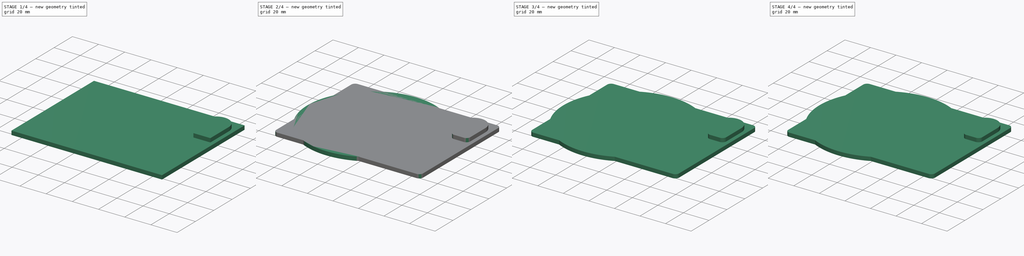
[diagram: build sequence overview — one tinted view per stage of 4, left to right]
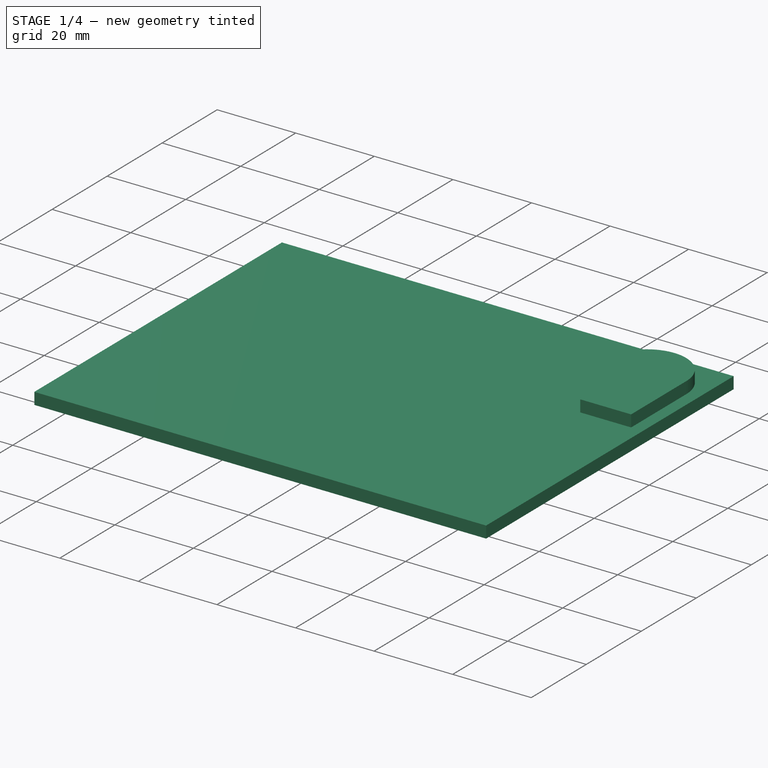
[diagram: stage 1 of 4 — iso view after this stage's code; geometry added in this stage tinted green]
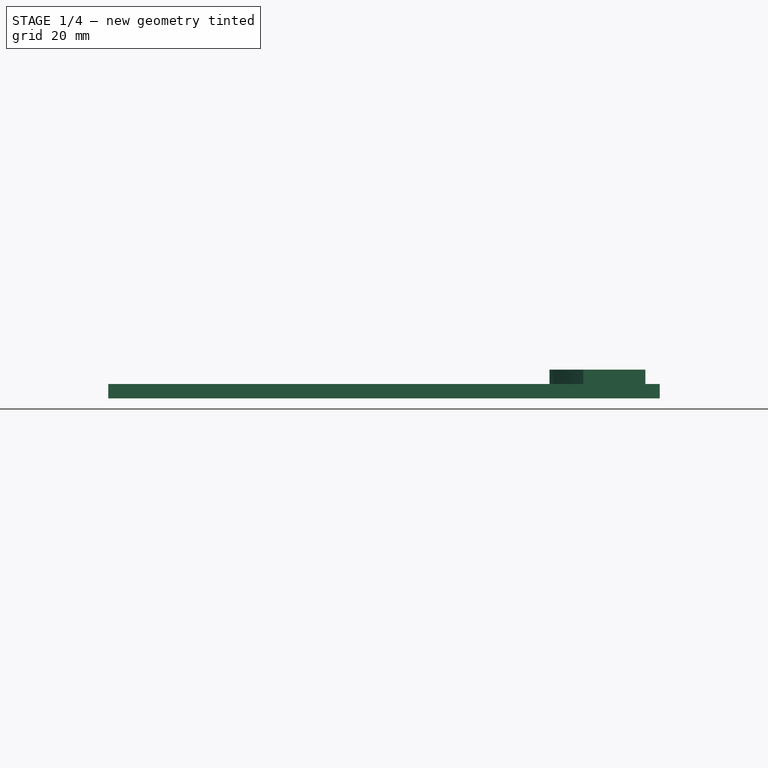
[diagram: stage 1 of 4 — front view after this stage's code; geometry added in this stage tinted green]
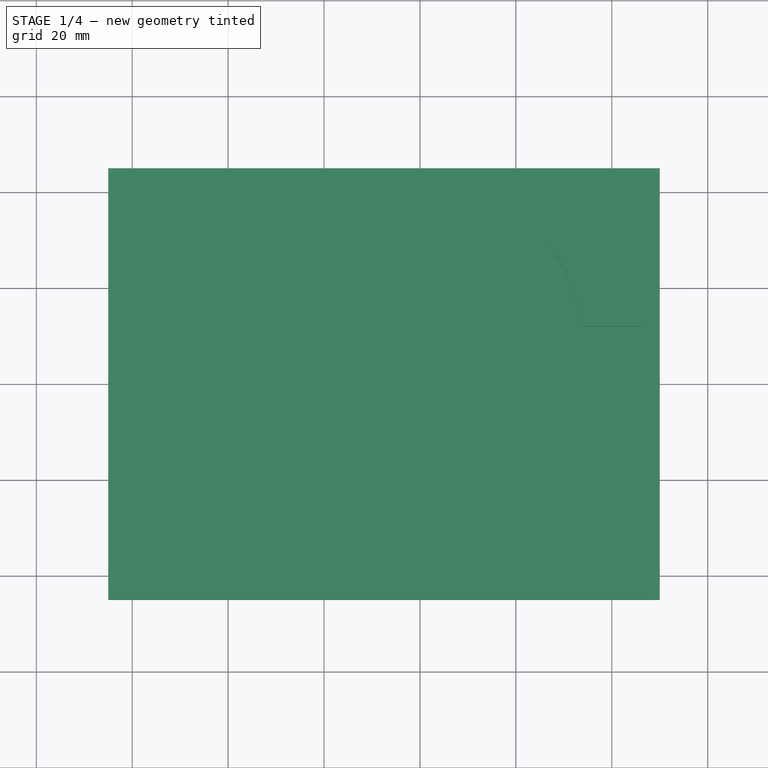
[diagram: stage 1 of 4 — top view after this stage's code; geometry added in this stage tinted green]
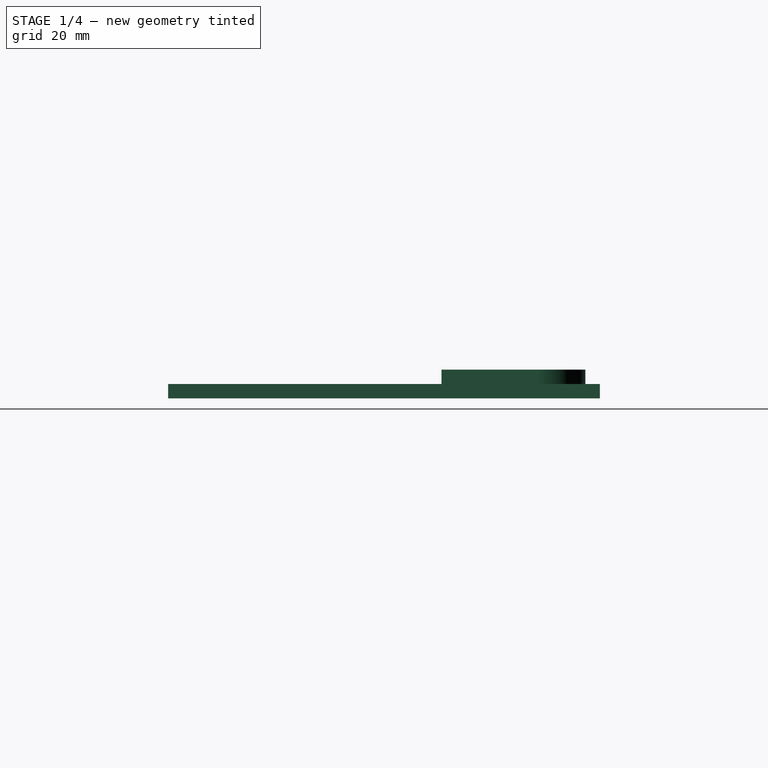
[diagram: stage 1 of 4 — right view after this stage's code; geometry added in this stage tinted green]
FCSTD DOCUMENT  (FreeCAD 0.20R29177 +426 (Git))
Label: record-player-coasters-holder
License: All rights reserved
LicenseURL: http://en.wikipedia.org/wiki/All_rights_reserved
objects: Sketcher::SketchObject×9, PartDesign::Pad×8, PartDesign::Body×8, Spreadsheet::Sheet×1, PartDesign::Fillet×1
note: 35 computed .brp shape members not serialized (recipe doc carries the construction recipe); baked Part::Feature solids carry a one-line shape summary decoded from their .brp

FEATURE [PartDesign::Body] Body006  label="coaster005"
  Group = -> [Sketch009,Pad008]
  Origin = -> Origin006
  Placement = pos=(0,0,18) rot=(0,0,1;0rad)
  Tip = -> Pad008
FEATURE [Sketcher::SketchObject] Sketch010
  FullyConstrained = true
  MapMode = 5
  Support = -> [XY_Plane007]
  expr: Constraints[10] = <<params>>.center_to_close_side
  expr: Constraints[11] = <<params>>.center_to_close_side
  expr: Constraints[8] = <<params>>.center_to_close_side
  expr: Constraints[9] = <<params>>.center_to_far_side
  sketch-geometry (4):
    g0: LineSegment StartX=-45 StartY=45 StartZ=0 EndX=70 EndY=45 EndZ=0
    g1: LineSegment StartX=70 StartY=45 StartZ=0 EndX=70 EndY=-45 EndZ=0
    g2: LineSegment StartX=70 StartY=-45 StartZ=0 EndX=-45 EndY=-45 EndZ=0
    g3: LineSegment StartX=-45 StartY=-45 StartZ=0 EndX=-45 EndY=45 EndZ=0
  constraints (12):
    c: Coincident(g0,g1)
    c: Coincident(g1,g2)
    c: Coincident(g2,g3)
    c: Coincident(g3,g0)
    c: Horizontal(g0)
    c: Horizontal(g2)
    c: Vertical(g1)
    c: Vertical(g3)
    c: DistanceX(g2,g-1) = 45
    c: DistanceX(g-1,g1) = 70
    c: DistanceY(g-1,g0) = 45
    c: DistanceY(g2,g-1) = 45
FEATURE [PartDesign::Pad] Pad009
  Direction = (0,0,1)
  Length = 3
  Length2 = 10
  Profile = -> Sketch010
  ReferenceAxis = -> Sketch010 [N_Axis]
  Type = 0
  expr: Length = <<params>>.sheet_width
FEATURE [Sketcher::SketchObject] Sketch011
  FullyConstrained = true
  MapMode = 5
  Placement = pos=(0,0,3) rot=(0,0,1;0rad)
  Support = -> [Pad009]
  sketch-geometry (4):
    g0: ArcOfCircle CenterX=57 CenterY=32 CenterZ=0 NormalX=0 NormalY=0 NormalZ=1 AngleXU=0 Radius=10 StartAngle=0 EndAngle=3.65315
    g1: LineSegment StartX=67 StartY=32 StartZ=0 EndX=67 EndY=12 EndZ=0
    g2: ArcOfCircle CenterX=0 CenterY=0 CenterZ=0 NormalX=0 NormalY=0 NormalZ=1 AngleXU=0 Radius=55.3682 StartAngle=0.218465 EndAngle=0.511556
    g3: LineSegment StartX=67 StartY=12 StartZ=0 EndX=54.0522 EndY=12 EndZ=0
  constraints (11):
    c: DistanceX(g-1,g0) = 57
    c: DistanceY(g-1,g0) = 32
    c: Diameter(g0) = 20
    c: Vertical(g1)
    c: Coincident(g2,g-1)
    c: Coincident(g3,g1)
    c: Horizontal(g3)
    c: DistanceY(g3,g0) = 20
    c: Coincident(g2,g3)
    c: Tangent(g0,g2) = 1.5708
    c: Tangent(g0,g1) = 1.5708
FEATURE [PartDesign::Pad] Pad010
  BaseFeature = -> Pad009
  Direction = (0,0,1)
  Length = 3
  Length2 = 10
  Profile = -> Sketch011
  ReferenceAxis = -> Sketch011 [N_Axis]
  Type = 0
  expr: Length = <<params>>.sheet_width
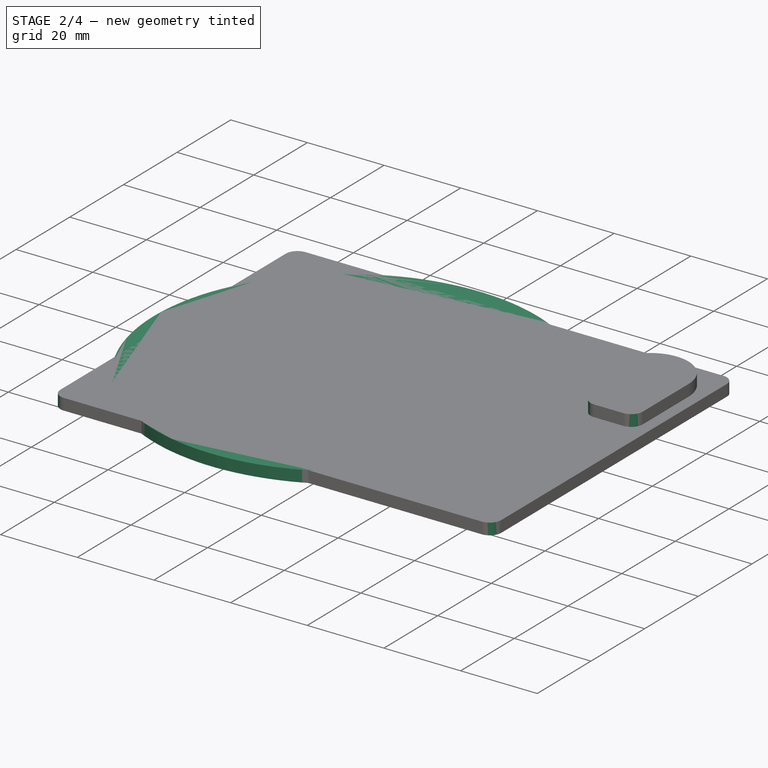
[diagram: stage 2 of 4 — iso view after this stage's code; geometry added in this stage tinted green]
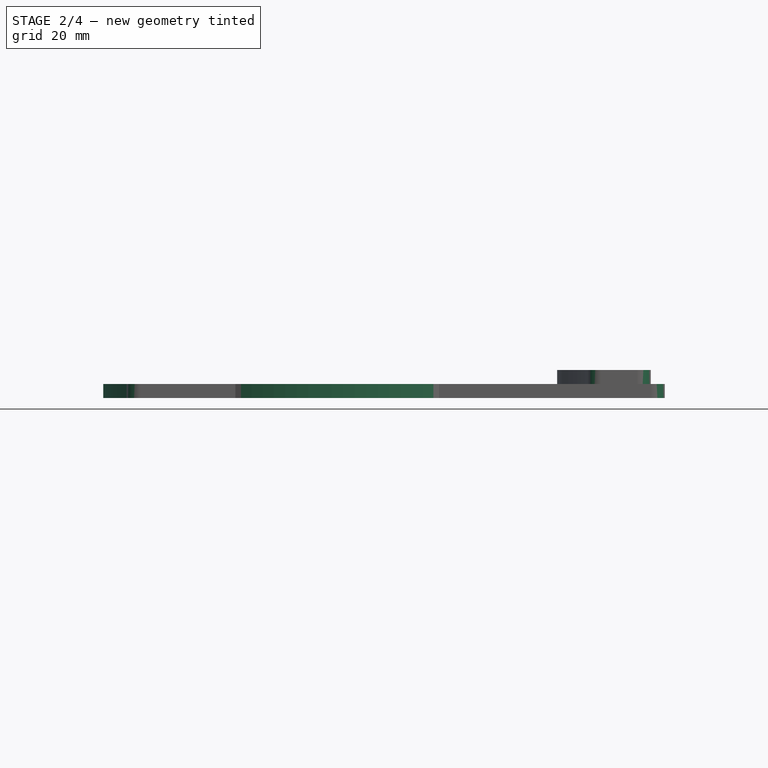
[diagram: stage 2 of 4 — front view after this stage's code; geometry added in this stage tinted green]
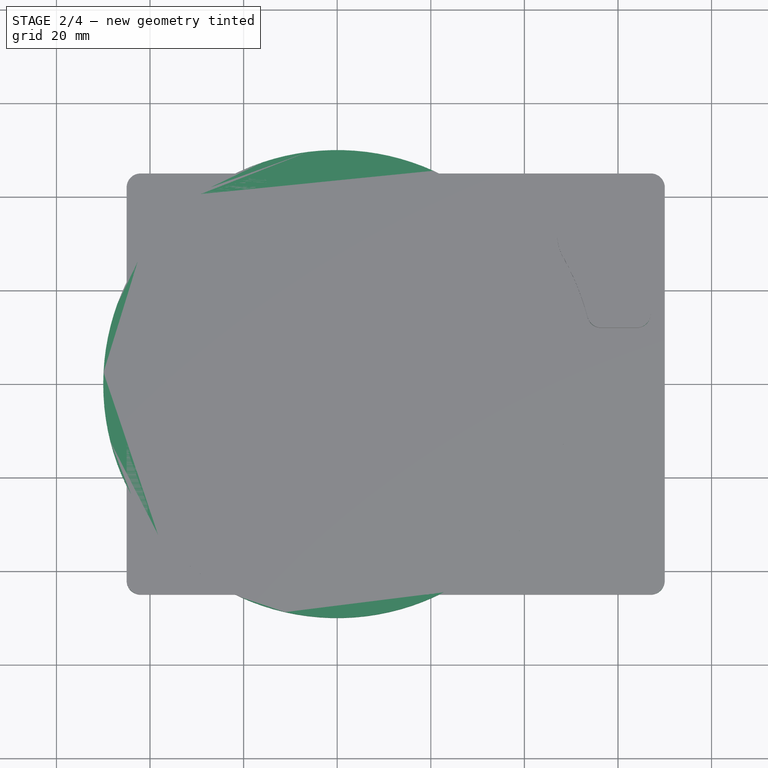
[diagram: stage 2 of 4 — top view after this stage's code; geometry added in this stage tinted green]
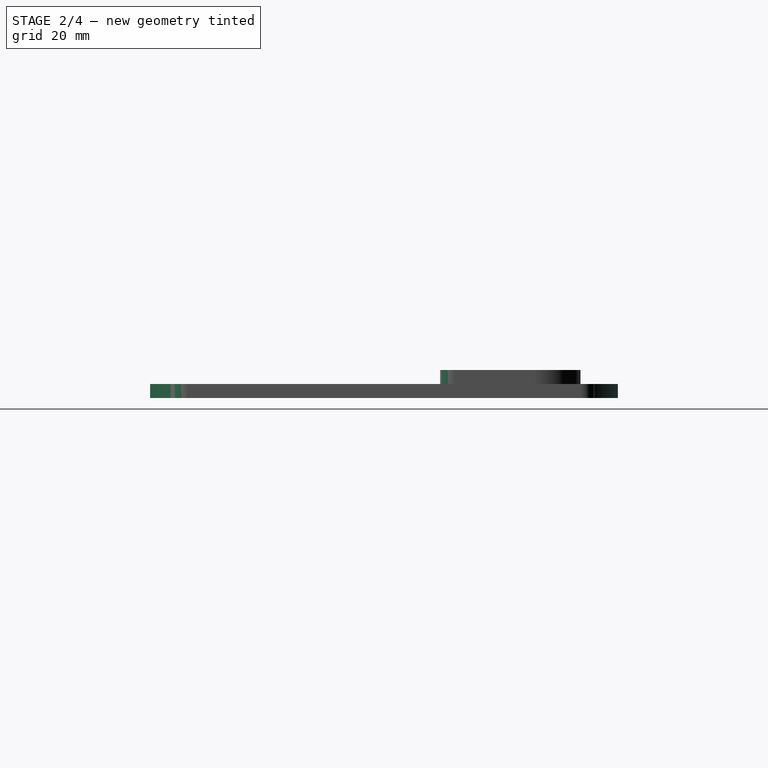
[diagram: stage 2 of 4 — right view after this stage's code; geometry added in this stage tinted green]
FEATURE [PartDesign::Body] Body005  label="coaster004"
  Group = -> [Sketch008,Pad007]
  Origin = -> Origin005
  Placement = pos=(0,0,15) rot=(0,0,1;0rad)
  Tip = -> Pad007
FEATURE [Sketcher::SketchObject] Sketch009
  FullyConstrained = true
  MapMode = 5
  Support = -> [XY_Plane006]
  sketch-geometry (1):
    g0: Circle CenterX=0 CenterY=0 CenterZ=0 NormalX=0 NormalY=0 NormalZ=1 AngleXU=0 Radius=50
  constraints (2):
    c: Coincident(g0,g-1)
    c: Diameter(g0) = 100
FEATURE [PartDesign::Pad] Pad008
  Direction = (0,0,1)
  Length = 3
  Length2 = 10
  Profile = -> Sketch009
  ReferenceAxis = -> Sketch009 [N_Axis]
  Type = 0
FEATURE [Sketcher::SketchObject] Sketch012
  FullyConstrained = false
  MapMode = 5
  Support = -> [XY_Plane008]
  sketch-geometry (9):
    g0: ArcOfCircle CenterX=56.8742 CenterY=34.9431 CenterZ=0 NormalX=0 NormalY=0 NormalZ=1 AngleXU=0 Radius=5.51068 StartAngle=0 EndAngle=3.14159
    g1: ArcOfCircle CenterX=56.8742 CenterY=29.0521 CenterZ=0 NormalX=0 NormalY=0 NormalZ=1 AngleXU=0 Radius=5.51068 StartAngle=3.14159 EndAngle=6.28319
    g2: LineSegment StartX=51.3635 StartY=34.9431 StartZ=0 EndX=51.3635 EndY=29.0521 EndZ=0
    g3: LineSegment StartX=62.3848 StartY=29.0521 StartZ=0 EndX=62.3848 EndY=34.9431 EndZ=0
    g4: LineSegment StartX=60.4831 StartY=-29.6842 StartZ=0 EndX=53.2652 EndY=-29.6842 EndZ=0
    g5: LineSegment StartX=53.2652 StartY=-29.6842 StartZ=0 EndX=60.4831 EndY=-29.6842 EndZ=0
    g6: LineSegment StartX=60.4831 StartY=-29.6842 StartZ=0 EndX=63.4887 EndY=-36.7 EndZ=0
    g7: LineSegment StartX=63.4887 StartY=-36.7 StartZ=0 EndX=50.2212 EndY=-36.7 EndZ=0
    g8: LineSegment StartX=50.2212 StartY=-36.7 StartZ=0 EndX=53.2652 EndY=-29.6842 EndZ=0
  constraints (13):
    c: Tangent(g0,g2) = -1.5708
    c: Tangent(g2,g1) = -1.5708
    c: Tangent(g1,g3) = -1.5708
    c: Tangent(g3,g0) = -1.5708
    c: Equal(g0,g1)
    c: Vertical(g2)
    c: Horizontal(g4)
    c: Coincident(g5,g6)
    c: Coincident(g6,g7)
    c: Coincident(g7,g8)
    c: Coincident(g8,g5)
    c: Horizontal(g7)
    c: Coincident(g5,g4)
FEATURE [PartDesign::Body] Body008
  Group = -> [Sketch012]
  Origin = -> Origin008
FEATURE [PartDesign::Fillet] Fillet
  Base = -> Pad010 [Edge8,Edge5,Edge1,Edge2,Edge22,Edge20]
  BaseFeature = -> Pad010
  Radius = 3
  SupportTransform = false
  UseAllEdges = false
FEATURE [PartDesign::Body] Body007  label="player"
  Group = -> [Sketch010,Pad009,Sketch011,Pad010,Fillet]
  Origin = -> Origin007
  Tip = -> Fillet
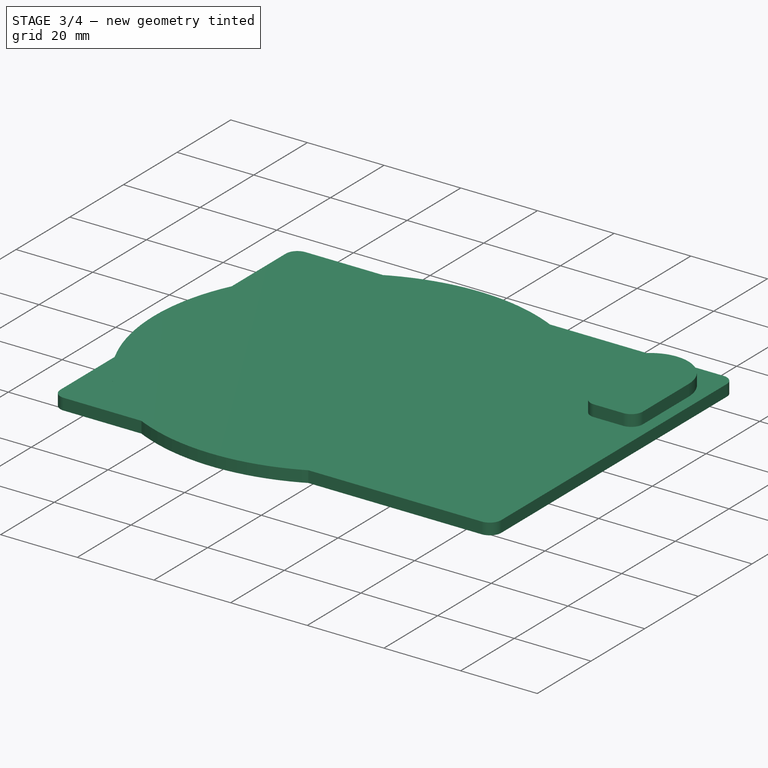
[diagram: stage 3 of 4 — iso view after this stage's code; geometry added in this stage tinted green]
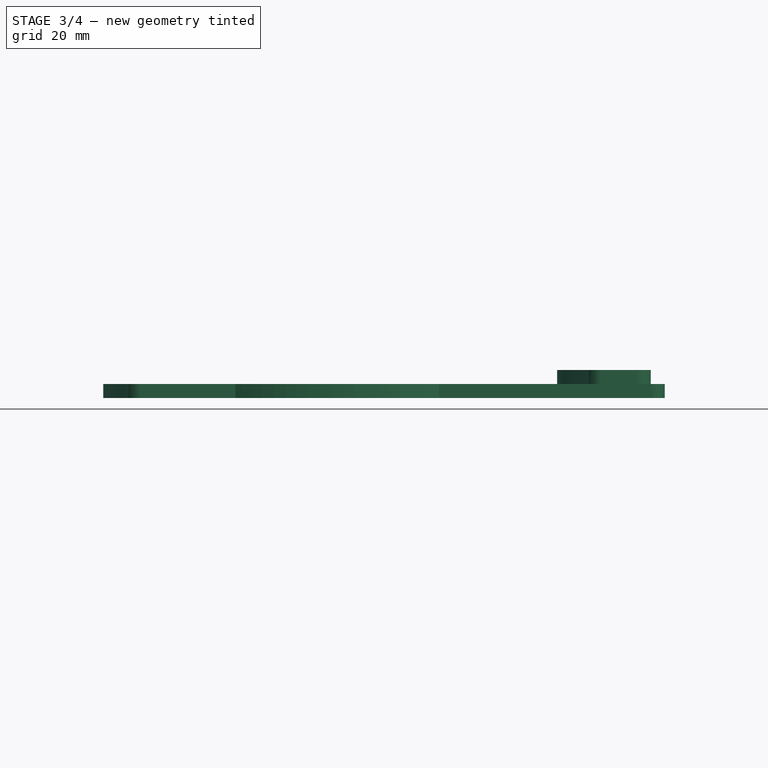
[diagram: stage 3 of 4 — front view after this stage's code; geometry added in this stage tinted green]
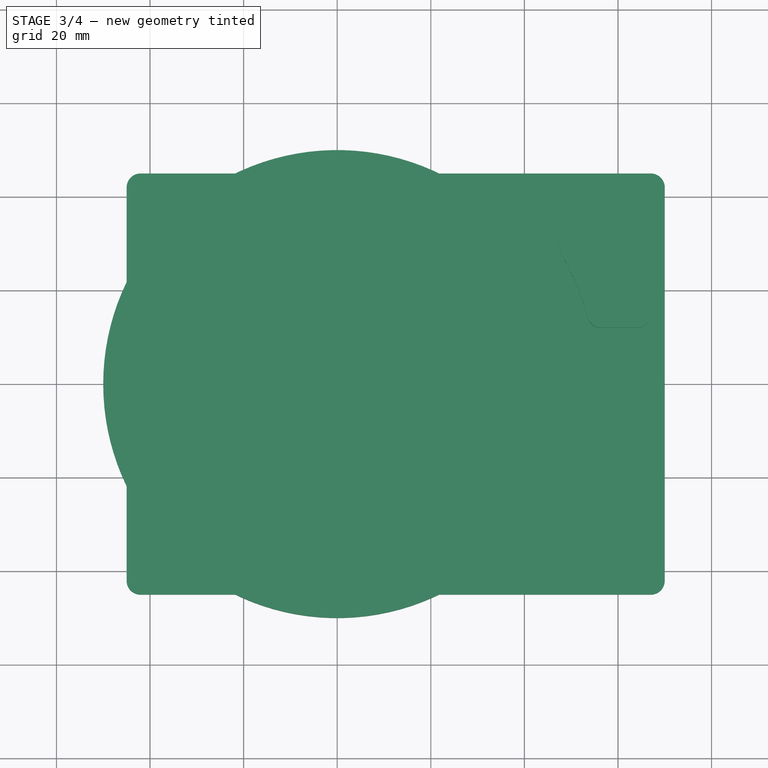
[diagram: stage 3 of 4 — top view after this stage's code; geometry added in this stage tinted green]
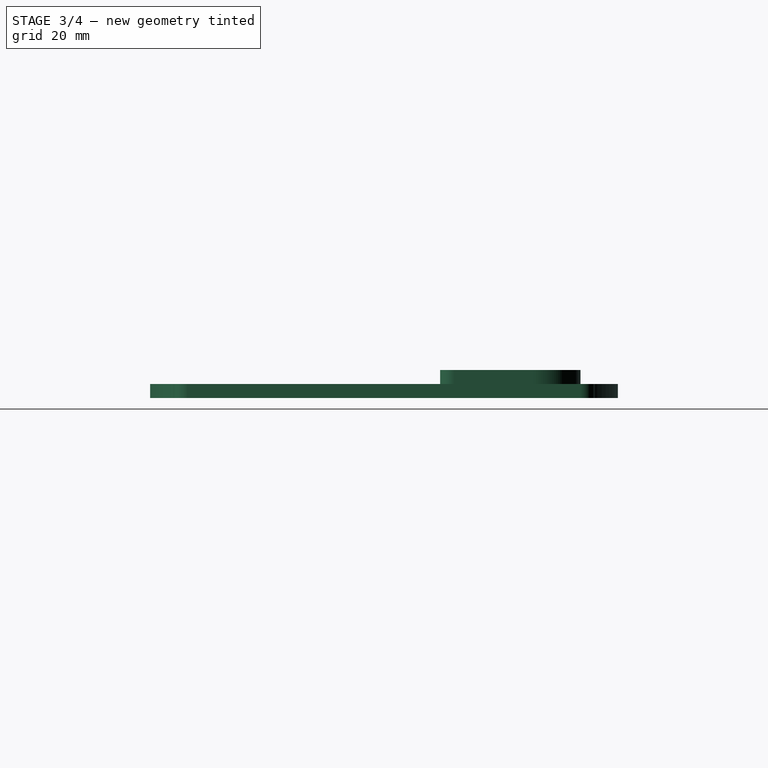
[diagram: stage 3 of 4 — right view after this stage's code; geometry added in this stage tinted green]
FEATURE [PartDesign::Body] Body002  label="coaster001"
  Group = -> [Sketch005,Pad004]
  Origin = -> Origin002
  Placement = pos=(0,0,6) rot=(0,0,1;0rad)
  Tip = -> Pad004
FEATURE [Sketcher::SketchObject] Sketch006
  FullyConstrained = true
  MapMode = 5
  Support = -> [XY_Plane003]
  sketch-geometry (1):
    g0: Circle CenterX=0 CenterY=0 CenterZ=0 NormalX=0 NormalY=0 NormalZ=1 AngleXU=0 Radius=50
  constraints (2):
    c: Coincident(g0,g-1)
    c: Diameter(g0) = 100
FEATURE [PartDesign::Pad] Pad005
  Direction = (0,0,1)
  Length = 3
  Length2 = 10
  Profile = -> Sketch006
  ReferenceAxis = -> Sketch006 [N_Axis]
  Type = 0
FEATURE [PartDesign::Body] Body003  label="coaster002"
  Group = -> [Sketch006,Pad005]
  Origin = -> Origin003
  Placement = pos=(0,0,9) rot=(0,0,1;0rad)
  Tip = -> Pad005
FEATURE [Sketcher::SketchObject] Sketch007
  FullyConstrained = true
  MapMode = 5
  Support = -> [XY_Plane004]
  sketch-geometry (1):
    g0: Circle CenterX=0 CenterY=0 CenterZ=0 NormalX=0 NormalY=0 NormalZ=1 AngleXU=0 Radius=50
  constraints (2):
    c: Coincident(g0,g-1)
    c: Diameter(g0) = 100
FEATURE [PartDesign::Pad] Pad006
  Direction = (0,0,1)
  Length = 3
  Length2 = 10
  Profile = -> Sketch007
  ReferenceAxis = -> Sketch007 [N_Axis]
  Type = 0
FEATURE [PartDesign::Body] Body004  label="coaster003"
  Group = -> [Sketch007,Pad006]
  Origin = -> Origin004
  Placement = pos=(0,0,12) rot=(0,0,1;0rad)
  Tip = -> Pad006
FEATURE [Sketcher::SketchObject] Sketch008
  FullyConstrained = true
  MapMode = 5
  Support = -> [XY_Plane005]
  sketch-geometry (1):
    g0: Circle CenterX=0 CenterY=0 CenterZ=0 NormalX=0 NormalY=0 NormalZ=1 AngleXU=0 Radius=50
  constraints (2):
    c: Coincident(g0,g-1)
    c: Diameter(g0) = 100
FEATURE [PartDesign::Pad] Pad007
  Direction = (0,0,1)
  Length = 3
  Length2 = 10
  Profile = -> Sketch008
  ReferenceAxis = -> Sketch008 [N_Axis]
  Type = 0
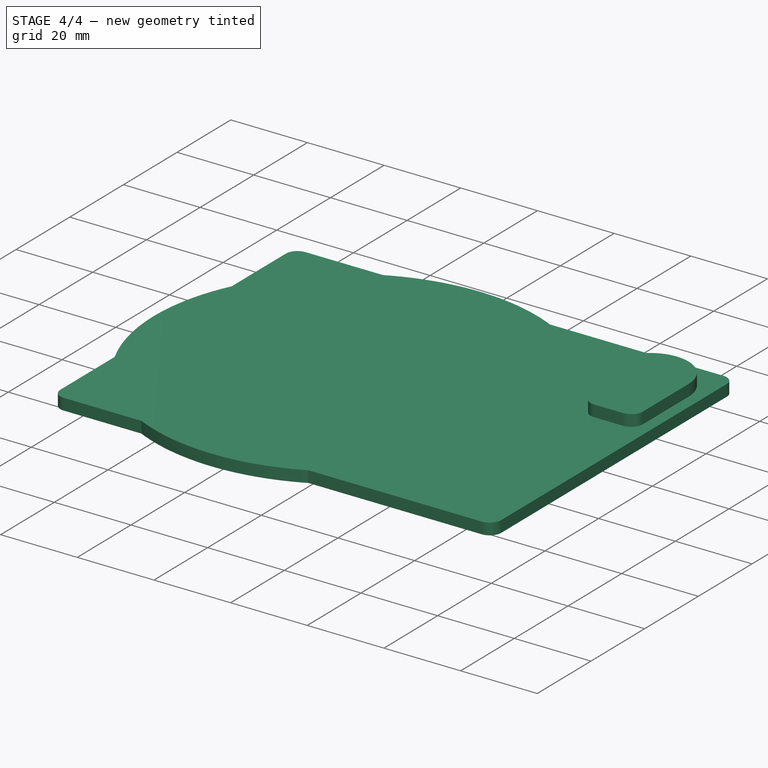
[diagram: stage 4 of 4 — iso view after this stage's code; geometry added in this stage tinted green]
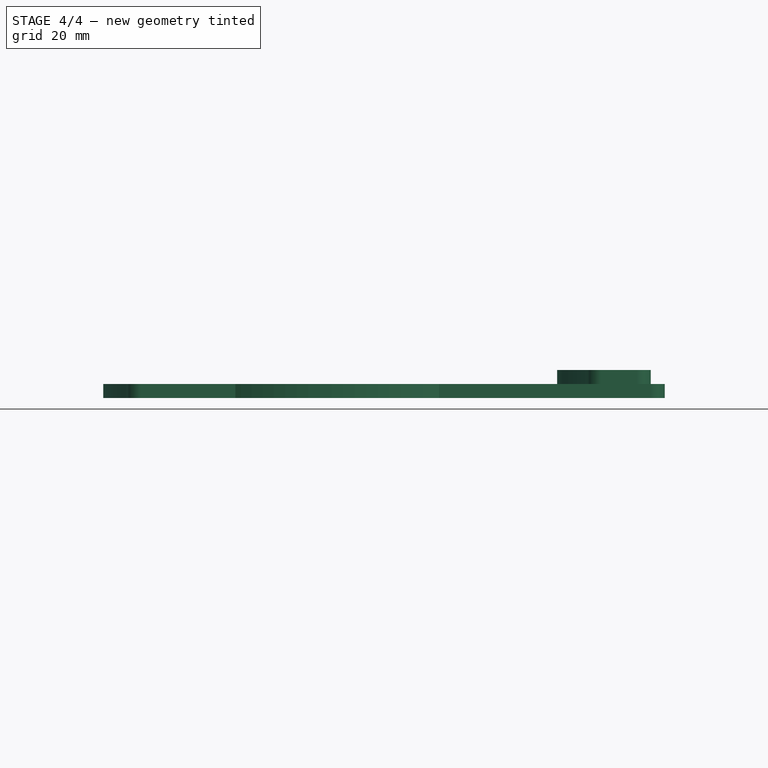
[diagram: stage 4 of 4 — front view after this stage's code; geometry added in this stage tinted green]
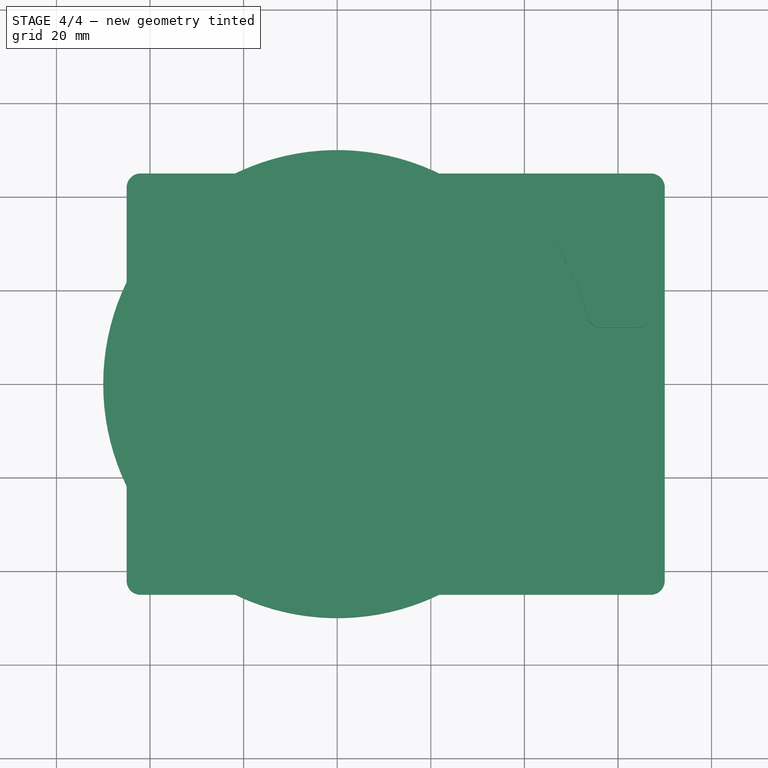
[diagram: stage 4 of 4 — top view after this stage's code; geometry added in this stage tinted green]
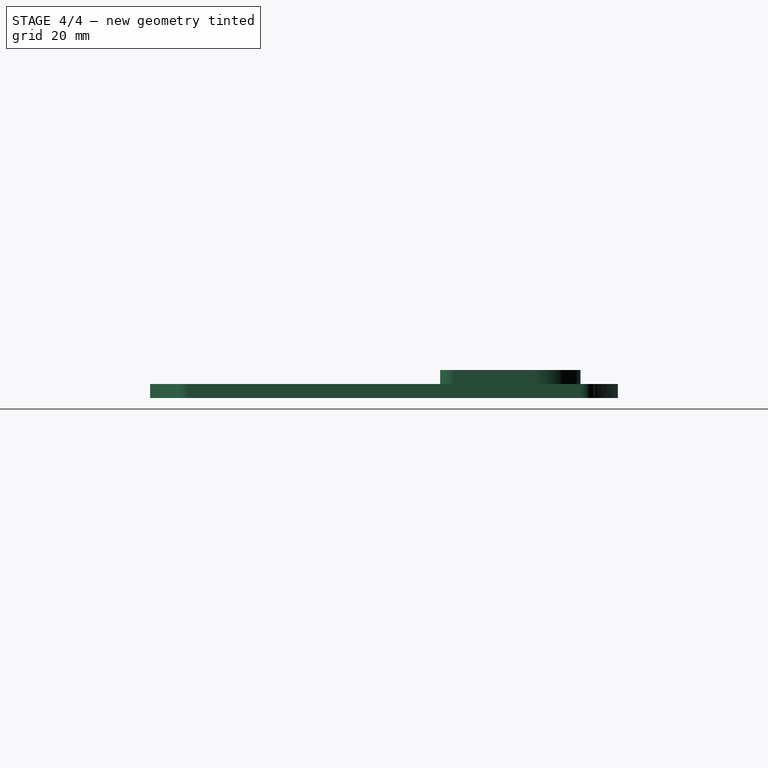
[diagram: stage 4 of 4 — right view after this stage's code; geometry added in this stage tinted green]
FEATURE [Sketcher::SketchObject] Sketch
  FullyConstrained = true
  MapMode = 5
  Support = -> [XY_Plane]
  sketch-geometry (1):
    g0: Circle CenterX=0 CenterY=0 CenterZ=0 NormalX=0 NormalY=0 NormalZ=1 AngleXU=0 Radius=50
  constraints (2):
    c: Coincident(g0,g-1)
    c: Diameter(g0) = 100
FEATURE [PartDesign::Pad] Pad
  Direction = (0,0,1)
  Length = 3
  Length2 = 10
  Profile = -> Sketch
  ReferenceAxis = -> Sketch [N_Axis]
  Type = 0
FEATURE [PartDesign::Body] Body  label="coaster"
  Group = -> [Sketch,Pad]
  Origin = -> Origin
  Placement = pos=(0,0,3) rot=(0,0,1;0rad)
  Tip = -> Pad
FEATURE [Spreadsheet::Sheet] Spreadsheet  label="params"
  cells = A1=center_to_close_side; B1(center_to_close_side)=45; A2=center_to_far_side; B2(center_to_far_side)=70; A3=sheet_width; B3(sheet_width)=3; A4=player_height; B4(player_height)==sheet_width + 13
FEATURE [Sketcher::SketchObject] Sketch005
  FullyConstrained = true
  MapMode = 5
  Support = -> [XY_Plane002]
  sketch-geometry (1):
    g0: Circle CenterX=0 CenterY=0 CenterZ=0 NormalX=0 NormalY=0 NormalZ=1 AngleXU=0 Radius=50
  constraints (2):
    c: Coincident(g0,g-1)
    c: Diameter(g0) = 100
FEATURE [PartDesign::Pad] Pad004
  Direction = (0,0,1)
  Length = 3
  Length2 = 10
  Profile = -> Sketch005
  ReferenceAxis = -> Sketch005 [N_Axis]
  Type = 0
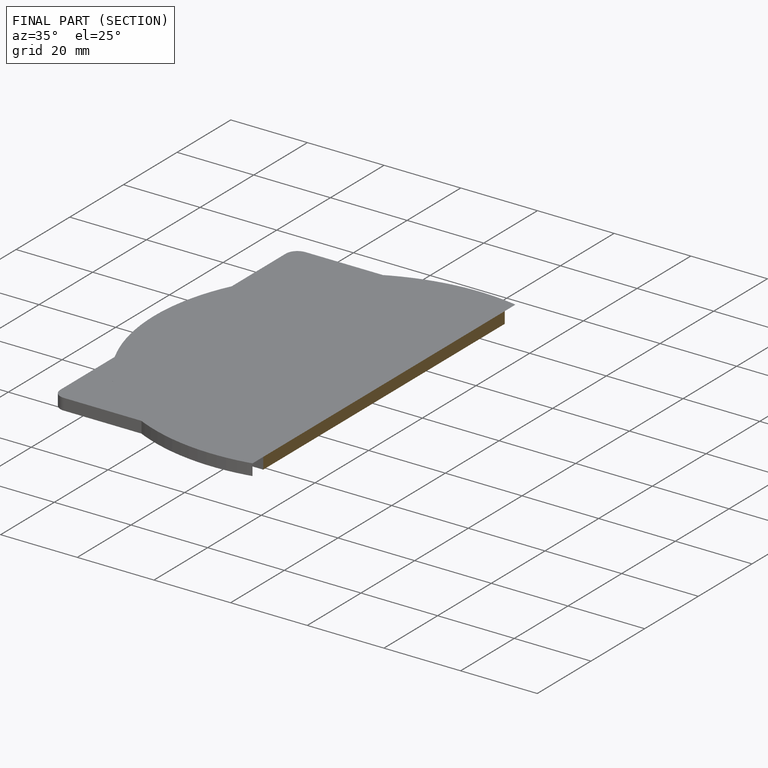
[diagram: finished part — half-section view (interior)]
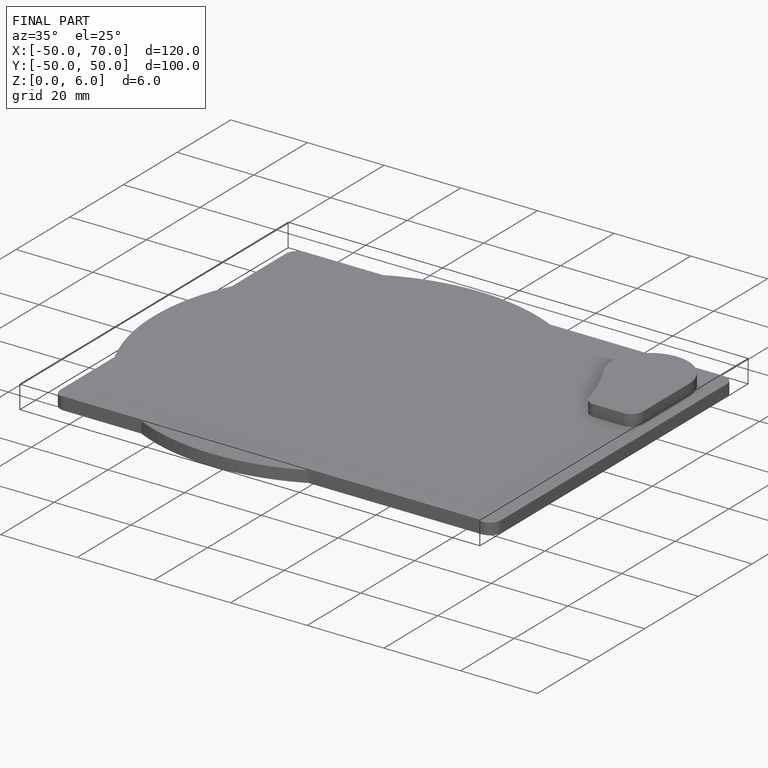
[diagram: finished part — iso view with bounding-box wireframe]
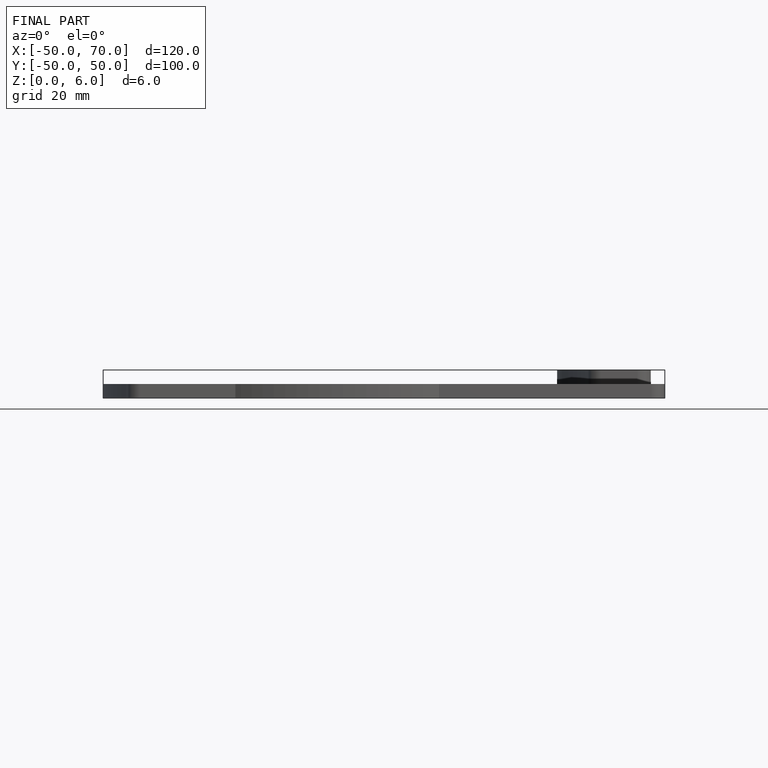
[diagram: finished part — front view with bounding-box wireframe]
